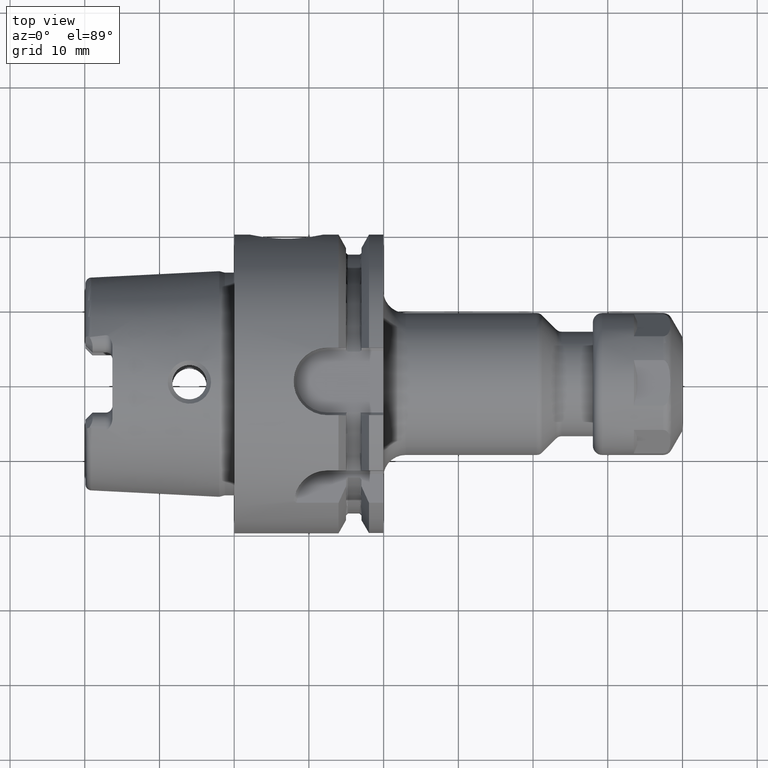
[diagram: clean part render]
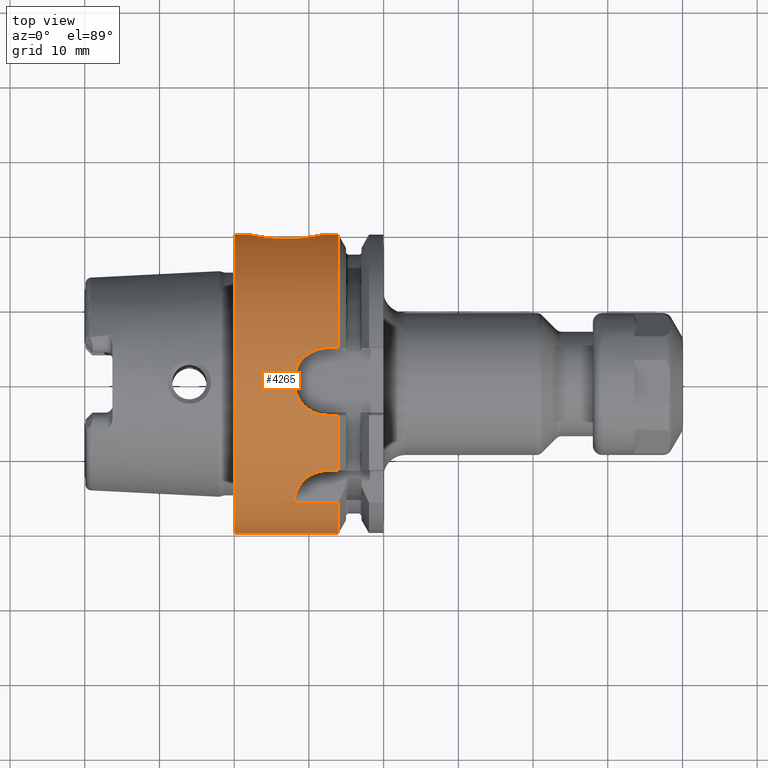
[diagram: same view with one face highlighted and labeled with its STEP entity id]
A machine part, top view. The second image highlights one B-rep face of the part: STEP entity #4265.
In plain terms, the highlighted cylindrical surface (partial cylindrical patch) has radius 20 mm, axis along (1, 0, 0).
Its self-contained STEP definition (entity closure, byte-faithful):
#848=CARTESIAN_POINT('',(-1.065814103640E-14,0.E0,0.E0));
#849=DIRECTION('',(1.E0,0.E0,0.E0));
#850=DIRECTION('',(0.E0,1.E0,0.E0));
#851=AXIS2_PLACEMENT_3D('',#848,#849,#850);
#868=CARTESIAN_POINT('',(1.2E1,2.E1,0.E0));
#869=CARTESIAN_POINT('',(1.2E1,2.E1,1.388364920824E-1));
#870=CARTESIAN_POINT('',(1.198852136236E1,1.999712548747E1,4.163534209624E-1));
#871=CARTESIAN_POINT('',(1.193575387490E1,1.998399805695E1,8.353836532792E-1));
#872=CARTESIAN_POINT('',(1.184807385497E1,1.996247590752E1,1.246772777118E0));
#873=CARTESIAN_POINT('',(1.172808406661E1,1.993361847563E1,1.643522431216E0));
#874=CARTESIAN_POINT('',(1.157779204334E1,1.989842510861E1,2.025268619863E0));
#875=CARTESIAN_POINT('',(1.138689605318E1,1.985523262154E1,2.412968215661E0));
#876=CARTESIAN_POINT('',(1.114061319227E1,1.980202032785E1,2.817609232830E0));
#877=CARTESIAN_POINT('',(1.081673847603E1,1.973634549447E1,3.247067969082E0));
#878=CARTESIAN_POINT('',(1.039181339644E1,1.965788368631E1,3.692535471258E0));
#879=CARTESIAN_POINT('',(9.863422884363E0,1.957260395466E1,4.119686676293E0));
#880=CARTESIAN_POINT('',(9.220127558389E0,1.948779295543E1,4.501864919923E0));
#881=CARTESIAN_POINT('',(8.499148679360E0,1.941800125601E1,4.791634903769E0));
#882=CARTESIAN_POINT('',(7.732800482805E0,1.937386221195E1,4.965596973568E0));
#883=CARTESIAN_POINT('',(7.243547559799E0,1.936491673104E1,5.E0));
#884=CARTESIAN_POINT('',(7.E0,1.936491673104E1,5.E0));
#886=CARTESIAN_POINT('',(1.396484030111E1,0.E0,0.E0));
#887=DIRECTION('',(1.E0,0.E0,0.E0));
#888=DIRECTION('',(0.E0,1.E0,0.E0));
#889=AXIS2_PLACEMENT_3D('',#886,#887,#888);
#891=DIRECTION('',(1.E0,0.E0,0.E0));
#892=VECTOR('',#891,1.500340301107E0);
#893=CARTESIAN_POINT('',(1.24645E1,4.5145E0,1.948382123070E1));
#894=LINE('',#893,#892);
#895=CARTESIAN_POINT('',(1.24645E1,-4.5145E0,1.948382123070E1));
#896=CARTESIAN_POINT('',(1.222605938493E1,-4.5145E0,1.948382123070E1));
#897=CARTESIAN_POINT('',(1.175634955477E1,-4.477254719415E0,1.949250745134E1));
#898=CARTESIAN_POINT('',(1.106538082615E1,-4.311694590912E0,1.953011531463E1));
#899=CARTESIAN_POINT('',(1.041175323585E1,-4.041445185646E0,1.958831169947E1));
#900=CARTESIAN_POINT('',(9.806730928010E0,-3.672158298590E0,1.966150249433E1));
#901=CARTESIAN_POINT('',(9.264858297734E0,-3.211232346491E0,1.974270525474E1));
#902=CARTESIAN_POINT('',(8.799966202024E0,-2.668790239521E0,1.982400636520E1));
#903=CARTESIAN_POINT('',(8.425033722943E0,-2.057768965675E0,1.989731802286E1));
#904=CARTESIAN_POINT('',(8.151831195768E0,-1.396640540426E0,1.995504198220E1));
#905=CARTESIAN_POINT('',(7.986823386720E0,-7.058256969508E-1,1.999164018754E1));
#906=CARTESIAN_POINT('',(7.931610508802E0,6.633746040929E-6,2.000417487318E1));
#907=CARTESIAN_POINT('',(7.986734587958E0,7.050673409850E-1,1.999166031749E1));
#908=CARTESIAN_POINT('',(8.151612137384E0,1.396018064878E0,1.995508958358E1));
#909=CARTESIAN_POINT('',(8.424797698977E0,2.057309965022E0,1.989736602478E1));
#910=CARTESIAN_POINT('',(8.799645917665E0,2.668336652278E0,1.982406670127E1));
#911=CARTESIAN_POINT('',(9.264309540647E0,3.210668038115E0,1.974279628087E1));
#912=CARTESIAN_POINT('',(9.805958879385E0,3.671592335241E0,1.966160873430E1));
#913=CARTESIAN_POINT('',(1.041087908155E1,4.041007020170E0,1.958840313666E1));
#914=CARTESIAN_POINT('',(1.106462780979E1,4.311461573509E0,1.953016753290E1));
#915=CARTESIAN_POINT('',(1.175580203183E1,4.477186389749E0,1.949252338525E1));
#916=CARTESIAN_POINT('',(1.222585124039E1,4.5145E0,1.948382123070E1));
#917=CARTESIAN_POINT('',(1.24645E1,4.5145E0,1.948382123070E1));
#919=DIRECTION('',(1.E0,0.E0,0.E0));
#920=VECTOR('',#919,1.500340301107E0);
#921=CARTESIAN_POINT('',(1.24645E1,-4.5145E0,1.948382123070E1));
#922=LINE('',#921,#920);
#923=CARTESIAN_POINT('',(1.396484030111E1,0.E0,0.E0));
#924=DIRECTION('',(1.E0,0.E0,0.E0));
#925=DIRECTION('',(0.E0,-2.25725E-1,9.741910615352E-1));
#926=AXIS2_PLACEMENT_3D('',#923,#924,#925);
#928=DIRECTION('',(1.E0,0.E0,0.E0));
#929=VECTOR('',#928,1.528472059422E0);
#930=CARTESIAN_POINT('',(1.243636824169E1,-1.185E1,1.611140900108E1));
#931=LINE('',#930,#929);
#932=CARTESIAN_POINT('',(7.968960083585E0,-1.580941218035E1,1.225000359856E1));
#933=CARTESIAN_POINT('',(7.980465974456E0,-1.571432762661E1,1.237271631336E1));
#934=CARTESIAN_POINT('',(8.009891160592E0,-1.552186089022E1,1.261520931943E1));
#935=CARTESIAN_POINT('',(8.075400283985E0,-1.522589618196E1,1.297084236680E1));
#936=CARTESIAN_POINT('',(8.163882477662E0,-1.492531775046E1,1.331554610073E1));
#937=CARTESIAN_POINT('',(8.278215935060E0,-1.461854290700E1,1.365167642390E1));
#938=CARTESIAN_POINT('',(8.426271428353E0,-1.429699115083E1,1.398823167662E1));
#939=CARTESIAN_POINT('',(8.619496051420E0,-1.395412465871E1,1.433057405991E1));
#940=CARTESIAN_POINT('',(8.877628062379E0,-1.358157265558E1,1.468445172181E1));
#941=CARTESIAN_POINT('',(9.217282102937E0,-1.318985222179E1,1.503721202526E1));
#942=CARTESIAN_POINT('',(9.635911446007E0,-1.281188299968E1,1.535995954130E1));
#943=CARTESIAN_POINT('',(1.011758629886E1,-1.247812611230E1,1.563160450734E1));
#944=CARTESIAN_POINT('',(1.065341368204E1,-1.220362745540E1,1.584618124697E1));
#945=CARTESIAN_POINT('',(1.122483356340E1,-1.200174211796E1,1.599911212344E1));
#946=CARTESIAN_POINT('',(1.182931041687E1,-1.187713548095E1,1.609150902344E1));
#947=CARTESIAN_POINT('',(1.223274162177E1,-1.185E1,1.611140900108E1));
#948=CARTESIAN_POINT('',(1.243636824169E1,-1.185E1,1.611140900108E1));
#950=DIRECTION('',(9.999999999998E-1,3.226187417353E-8,-5.543925961060E-7));
#951=VECTOR('',#950,5.621520906691E0);
#952=CARTESIAN_POINT('',(8.343319394417E0,-1.611140918244E1,1.185000311653E1));
#953=LINE('',#952,#951);
#954=CARTESIAN_POINT('',(1.396484030111E1,0.E0,0.E0));
#955=DIRECTION('',(1.E0,0.E0,0.E0));
#956=DIRECTION('',(0.E0,-8.055704500539E-1,5.925E-1));
#957=AXIS2_PLACEMENT_3D('',#954,#955,#956);
#959=CARTESIAN_POINT('',(7.E0,1.936491673104E1,5.E0));
#960=CARTESIAN_POINT('',(6.757842275163E0,1.936491673104E1,5.E0));
#961=CARTESIAN_POINT('',(6.272015929761E0,1.937377025067E1,4.965945782206E0));
#962=CARTESIAN_POINT('',(5.513913989160E0,1.941710834372E1,4.795174064460E0));
#963=CARTESIAN_POINT('',(4.800819478676E0,1.948549121762E1,4.511626130597E0));
#964=CARTESIAN_POINT('',(4.161929649557E0,1.956892792844E1,4.136878616791E0));
#965=CARTESIAN_POINT('',(3.633180590226E0,1.965356719258E1,3.715276786748E0));
#966=CARTESIAN_POINT('',(3.204976628665E0,1.973213279173E1,3.272512011412E0));
#967=CARTESIAN_POINT('',(2.876996661665E0,1.979832697355E1,2.843463882646E0));
#968=CARTESIAN_POINT('',(2.626840198611E0,1.985218891116E1,2.437973454835E0));
#969=CARTESIAN_POINT('',(2.432174609471E0,1.989612469831E1,2.047934514156E0));
#970=CARTESIAN_POINT('',(2.278453921166E0,1.993206182134E1,1.662629057607E0));
#971=CARTESIAN_POINT('',(2.155514119503E0,1.996160065716E1,1.261225331909E0));
#972=CARTESIAN_POINT('',(2.065767156035E0,1.998362069804E1,8.451486757929E-1));
#973=CARTESIAN_POINT('',(2.011752367597E0,1.999705681163E1,4.212737193790E-1));
#974=CARTESIAN_POINT('',(2.E0,2.E1,1.404860171811E-1));
#975=CARTESIAN_POINT('',(2.E0,2.E1,0.E0));
#1067=DIRECTION('',(-1.E0,0.E0,0.E0));
#1068=VECTOR('',#1067,2.E0);
#1069=CARTESIAN_POINT('',(2.E0,2.E1,0.E0));
#1070=LINE('',#1069,#1068);
#1071=DIRECTION('',(-1.E0,0.E0,0.E0));
#1072=VECTOR('',#1071,1.396484030111E1);
#1073=CARTESIAN_POINT('',(1.396484030111E1,-2.E1,0.E0));
#1074=LINE('',#1073,#1072);
#1128=DIRECTION('',(-1.E0,0.E0,0.E0));
#1129=VECTOR('',#1128,1.964840301107E0);
#1130=CARTESIAN_POINT('',(1.396484030111E1,2.E1,0.E0));
#1131=LINE('',#1130,#1129);
#1156=CARTESIAN_POINT('',(1.396484030111E1,-4.5145E0,1.948382123070E1));
#1429=CARTESIAN_POINT('',(1.396484030111E1,4.5145E0,1.948382123070E1));
#1634=CARTESIAN_POINT('',(1.396484030111E1,-1.185E1,1.611140900108E1));
#1692=CARTESIAN_POINT('',(1.396484030111E1,-1.611140900108E1,1.185E1));
#1734=CARTESIAN_POINT('',(8.343319394417E0,-1.611140918244E1,1.185000311653E1));
#1735=CARTESIAN_POINT('',(8.281148372646E0,-1.606371821676E1,1.191484435312E1));
#1736=CARTESIAN_POINT('',(8.156545853930E0,-1.596576398989E1,1.204637740166E1));
#1737=CARTESIAN_POINT('',(8.031514138769E0,-1.586247060764E1,1.218152829527E1));
#1738=CARTESIAN_POINT('',(7.968960083585E0,-1.580941218035E1,1.225000359856E1));
#2924=VERTEX_POINT('',#1156);
#2934=VERTEX_POINT('',#1429);
#3009=VERTEX_POINT('',#1692);
#3011=VERTEX_POINT('',#1634);
#3028=CARTESIAN_POINT('',(1.24645E1,4.5145E0,1.948382123070E1));
#3029=VERTEX_POINT('',#3028);
#3030=CARTESIAN_POINT('',(1.24645E1,-4.5145E0,1.948382123070E1));
#3031=VERTEX_POINT('',#3030);
#3080=CARTESIAN_POINT('',(7.968956816023E0,-1.580941221447E1,1.225002052358E1));
#3081=VERTEX_POINT('',#3080);
#3082=CARTESIAN_POINT('',(8.343334950643E0,-1.611141008924E1,1.185E1));
#3083=VERTEX_POINT('',#3082);
#3084=CARTESIAN_POINT('',(1.243636824169E1,-1.185E1,1.611140900108E1));
#3085=VERTEX_POINT('',#3084);
#3102=CARTESIAN_POINT('',(-1.065814103640E-14,2.E1,0.E0));
#3103=CARTESIAN_POINT('',(-1.065814103640E-14,-2.E1,0.E0));
#3104=VERTEX_POINT('',#3102);
#3105=VERTEX_POINT('',#3103);
#3106=CARTESIAN_POINT('',(1.396484030111E1,2.E1,0.E0));
#3107=VERTEX_POINT('',#3106);
#3108=CARTESIAN_POINT('',(1.396484030111E1,-2.E1,0.E0));
#3109=VERTEX_POINT('',#3108);
#3202=CARTESIAN_POINT('',(7.E0,1.936491673104E1,5.E0));
#3203=VERTEX_POINT('',#3202);
#3206=VERTEX_POINT('',#868);
#3207=VERTEX_POINT('',#975);
#4227=CARTESIAN_POINT('',(-2.18925E1,0.E0,0.E0));
#4228=DIRECTION('',(1.E0,0.E0,0.E0));
#4229=DIRECTION('',(0.E0,-1.E0,0.E0));
#4230=AXIS2_PLACEMENT_3D('',#4227,#4228,#4229);
#4231=CYLINDRICAL_SURFACE('',#4230,2.E1);
#4233=ORIENTED_EDGE('',*,*,#4232,.F.);
#4235=ORIENTED_EDGE('',*,*,#4234,.F.);
#4237=ORIENTED_EDGE('',*,*,#4236,.T.);
#4239=ORIENTED_EDGE('',*,*,#4238,.F.);
#4241=ORIENTED_EDGE('',*,*,#4240,.F.);
#4243=ORIENTED_EDGE('',*,*,#4242,.T.);
#4245=ORIENTED_EDGE('',*,*,#4244,.T.);
#4247=ORIENTED_EDGE('',*,*,#4246,.F.);
#4249=ORIENTED_EDGE('',*,*,#4248,.F.);
#4251=ORIENTED_EDGE('',*,*,#4250,.F.);
#4253=ORIENTED_EDGE('',*,*,#4252,.T.);
#4255=ORIENTED_EDGE('',*,*,#4254,.T.);
#4257=ORIENTED_EDGE('',*,*,#4256,.T.);
#4258=ORIENTED_EDGE('',*,*,#4216,.F.);
#4260=ORIENTED_EDGE('',*,*,#4259,.F.);
#4262=ORIENTED_EDGE('',*,*,#4261,.F.);
#4263=EDGE_LOOP('',(#4233,#4235,#4237,#4239,#4241,#4243,#4245,#4247,#4249,#4251,
#4253,#4255,#4257,#4258,#4260,#4262));
#4264=FACE_OUTER_BOUND('',#4263,.F.);
#4265=ADVANCED_FACE('',(#4264),#4231,.T.);
#852=CIRCLE('',#851,2.E1);
#885=B_SPLINE_CURVE_WITH_KNOTS('',3,(#868,#869,#870,#871,#872,#873,#874,#875,
#876,#877,#878,#879,#880,#881,#882,#883,#884),.UNSPECIFIED.,.F.,.F.,(4,1,1,1,1,
1,1,1,1,1,1,1,1,1,4),(0.E0,7.142857142857E-2,1.428571428571E-1,
2.142857142857E-1,2.857142857143E-1,3.571428571429E-1,4.285714285714E-1,5.E-1,
5.714285714286E-1,6.428571428571E-1,7.142857142857E-1,7.857142857143E-1,
8.571428571429E-1,9.285714285714E-1,1.E0),.UNSPECIFIED.);
#890=CIRCLE('',#889,2.E1);
#918=B_SPLINE_CURVE_WITH_KNOTS('',3,(#895,#896,#897,#898,#899,#900,#901,#902,
#903,#904,#905,#906,#907,#908,#909,#910,#911,#912,#913,#914,#915,#916,#917),
.UNSPECIFIED.,.F.,.F.,(4,1,1,1,1,1,1,1,1,1,1,1,1,1,1,1,1,1,1,1,4),(0.E0,5.E-2,
1.E-1,1.5E-1,2.E-1,2.5E-1,3.E-1,3.5E-1,4.E-1,4.5E-1,5.E-1,5.5E-1,6.E-1,6.5E-1,
7.E-1,7.5E-1,8.E-1,8.5E-1,9.E-1,9.5E-1,1.E0),.UNSPECIFIED.);
#927=CIRCLE('',#926,2.E1);
#949=B_SPLINE_CURVE_WITH_KNOTS('',3,(#932,#933,#934,#935,#936,#937,#938,#939,
#940,#941,#942,#943,#944,#945,#946,#947,#948),.UNSPECIFIED.,.F.,.F.,(4,1,1,1,1,
1,1,1,1,1,1,1,1,1,4),(0.E0,7.142857142857E-2,1.428571428571E-1,
2.142857142857E-1,2.857142857143E-1,3.571428571429E-1,4.285714285714E-1,5.E-1,
5.714285714286E-1,6.428571428571E-1,7.142857142857E-1,7.857142857143E-1,
8.571428571429E-1,9.285714285714E-1,1.E0),.UNSPECIFIED.);
#958=CIRCLE('',#957,2.E1);
#976=B_SPLINE_CURVE_WITH_KNOTS('',3,(#959,#960,#961,#962,#963,#964,#965,#966,
#967,#968,#969,#970,#971,#972,#973,#974,#975),.UNSPECIFIED.,.F.,.F.,(4,1,1,1,1,
1,1,1,1,1,1,1,1,1,4),(0.E0,7.142857142857E-2,1.428571428571E-1,
2.142857142857E-1,2.857142857143E-1,3.571428571429E-1,4.285714285714E-1,5.E-1,
5.714285714286E-1,6.428571428571E-1,7.142857142857E-1,7.857142857143E-1,
8.571428571429E-1,9.285714285714E-1,1.E0),.UNSPECIFIED.);
#1739=B_SPLINE_CURVE_WITH_KNOTS('',3,(#1734,#1735,#1736,#1737,#1738),
.UNSPECIFIED.,.F.,.F.,(4,1,4),(0.E0,5.E-1,1.E0),.UNSPECIFIED.);
#4216=EDGE_CURVE('',#3104,#3105,#852,.T.);
#4232=EDGE_CURVE('',#3206,#3203,#885,.T.);
#4234=EDGE_CURVE('',#3107,#3206,#1131,.T.);
#4236=EDGE_CURVE('',#3107,#2934,#890,.T.);
#4238=EDGE_CURVE('',#3029,#2934,#894,.T.);
#4240=EDGE_CURVE('',#3031,#3029,#918,.T.);
#4242=EDGE_CURVE('',#3031,#2924,#922,.T.);
#4244=EDGE_CURVE('',#2924,#3011,#927,.T.);
#4246=EDGE_CURVE('',#3085,#3011,#931,.T.);
#4248=EDGE_CURVE('',#3081,#3085,#949,.T.);
#4250=EDGE_CURVE('',#3083,#3081,#1739,.T.);
#4252=EDGE_CURVE('',#3083,#3009,#953,.T.);
#4254=EDGE_CURVE('',#3009,#3109,#958,.T.);
#4256=EDGE_CURVE('',#3109,#3105,#1074,.T.);
#4259=EDGE_CURVE('',#3207,#3104,#1070,.T.);
#4261=EDGE_CURVE('',#3203,#3207,#976,.T.);